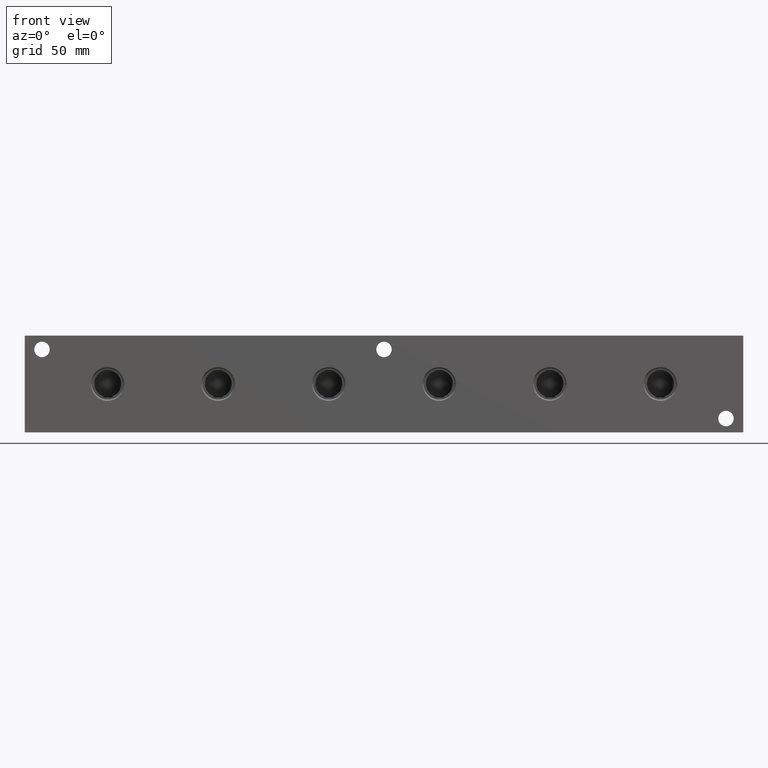
[diagram: clean part render]
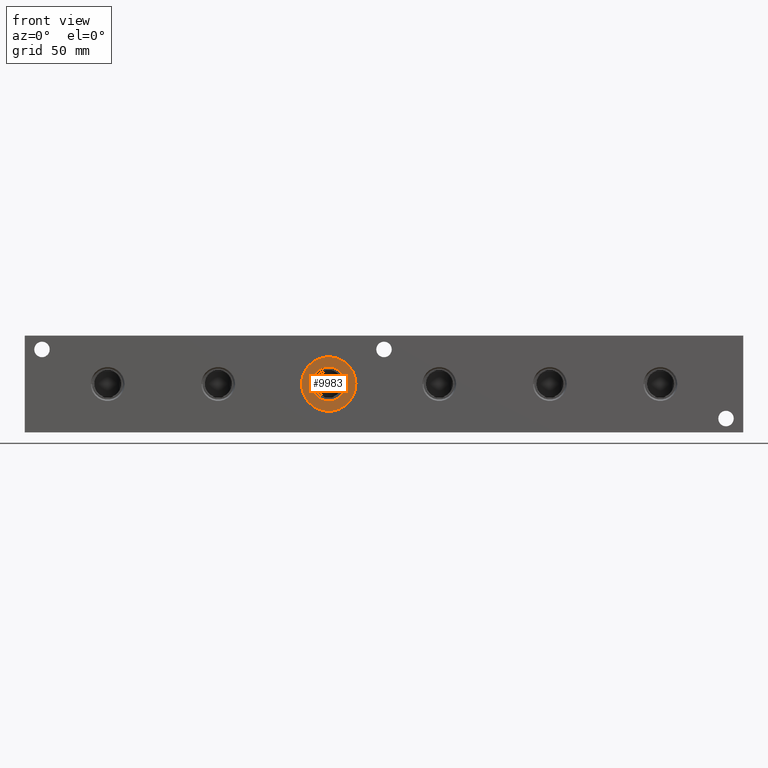
[diagram: same view with one face highlighted and labeled with its STEP entity id]
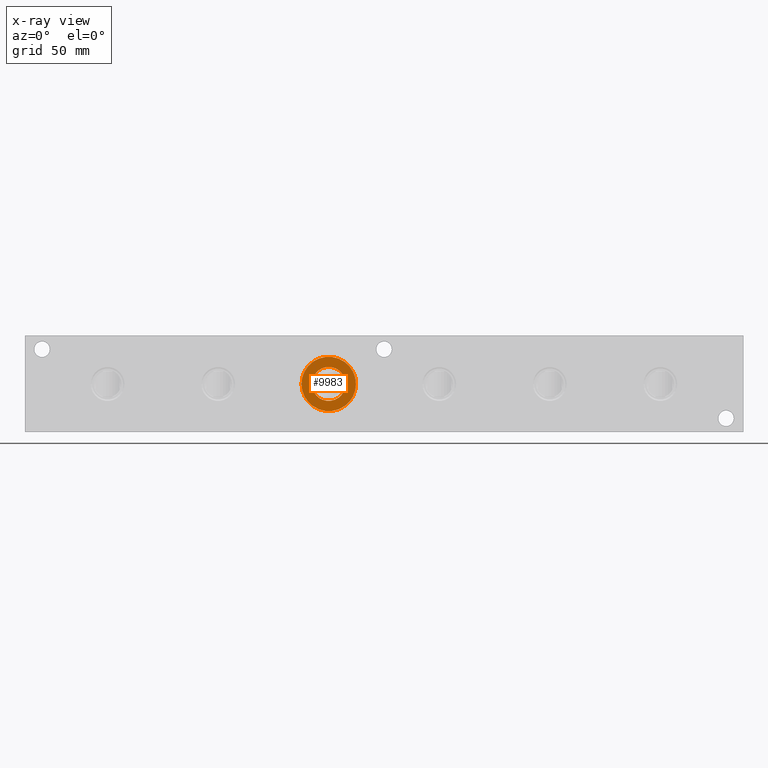
[diagram: x-ray of the same camera — body ghosted, the highlighted face saturated]
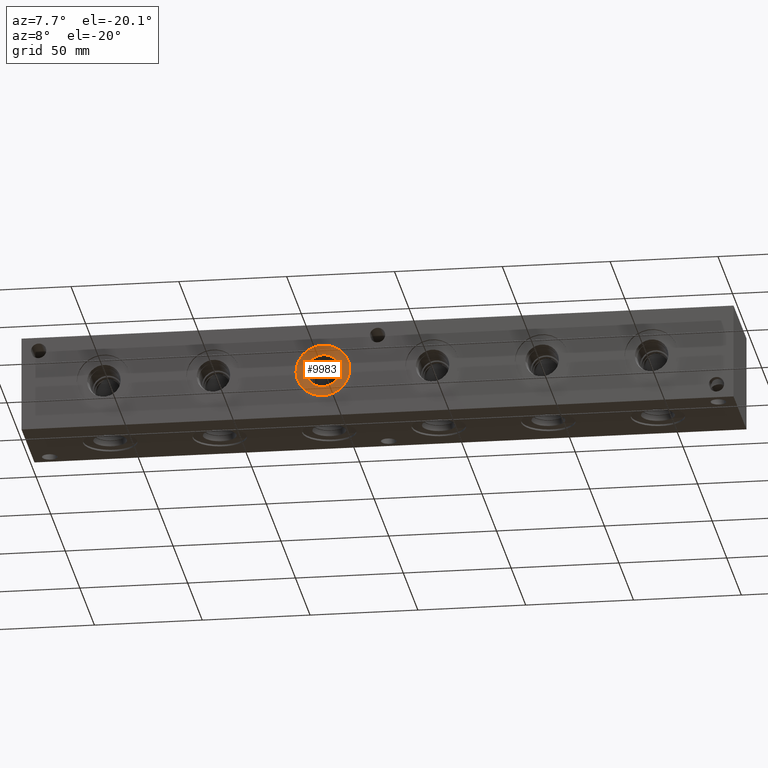
[diagram: same view with one face highlighted and labeled with its STEP entity id]
A machine part, front view. The second image highlights one B-rep face of the part: STEP entity #9983.
The next image is the same camera in x-ray: the body ghosted, the highlighted face saturated — about 0% of this face is hidden behind the body in this view.
A second angle (auxiliary view) of the same face is appended — the face is thin or edge-on in the first view.
In plain terms, the highlighted planar face has unit normal (0, 1, 0).
Its self-contained STEP definition (entity closure, byte-faithful):
#452=CIRCLE('',#10629,12.5095);
#453=CIRCLE('',#10630,12.5095);
#454=CIRCLE('',#10632,7.79780000000001);
#455=CIRCLE('',#10633,7.79780000000001);
#670=FACE_BOUND('',#2085,.T.);
#1496=FACE_OUTER_BOUND('',#2084,.T.);
#2084=EDGE_LOOP('',(#8346,#8347));
#2085=EDGE_LOOP('',(#8348,#8349));
#4541=VERTEX_POINT('',#17314);
#4542=VERTEX_POINT('',#17316);
#4543=VERTEX_POINT('',#17320);
#4544=VERTEX_POINT('',#17321);
#5862=EDGE_CURVE('',#4541,#4542,#452,.T.);
#5863=EDGE_CURVE('',#4542,#4541,#453,.T.);
#5864=EDGE_CURVE('',#4543,#4544,#454,.T.);
#5865=EDGE_CURVE('',#4544,#4543,#455,.T.);
#8346=ORIENTED_EDGE('',*,*,#5863,.F.);
#8347=ORIENTED_EDGE('',*,*,#5862,.F.);
#8348=ORIENTED_EDGE('',*,*,#5864,.T.);
#8349=ORIENTED_EDGE('',*,*,#5865,.T.);
#9249=PLANE('',#10631);
#9983=ADVANCED_FACE('',(#1496,#670),#9249,.F.);
#10629=AXIS2_PLACEMENT_3D('',#17317,#12648,#12649);
#10630=AXIS2_PLACEMENT_3D('',#17318,#12650,#12651);
#10631=AXIS2_PLACEMENT_3D('',#17319,#12652,#12653);
#10632=AXIS2_PLACEMENT_3D('',#17322,#12654,#12655);
#10633=AXIS2_PLACEMENT_3D('',#17323,#12656,#12657);
#12648=DIRECTION('center_axis',(0.,1.,0.));
#12649=DIRECTION('ref_axis',(1.,0.,0.));
#12650=DIRECTION('center_axis',(0.,1.,0.));
#12651=DIRECTION('ref_axis',(1.,0.,0.));
#12652=DIRECTION('center_axis',(0.,1.,0.));
#12653=DIRECTION('ref_axis',(0.,0.,1.));
#12654=DIRECTION('center_axis',(0.,1.,0.));
#12655=DIRECTION('ref_axis',(1.,0.,0.));
#12656=DIRECTION('center_axis',(0.,1.,0.));
#12657=DIRECTION('ref_axis',(1.,0.,0.));
#17314=CARTESIAN_POINT('',(127.1905,0.7874,22.225));
#17316=CARTESIAN_POINT('',(152.2095,0.7874,22.225));
#17317=CARTESIAN_POINT('Origin',(139.7,0.7874,22.225));
#17318=CARTESIAN_POINT('Origin',(139.7,0.7874,22.225));
#17319=CARTESIAN_POINT('Origin',(147.4978,0.7874,22.225));
#17320=CARTESIAN_POINT('',(147.4978,0.7874,22.225));
#17321=CARTESIAN_POINT('',(131.9022,0.787399999999998,22.225));
#17322=CARTESIAN_POINT('Origin',(139.7,0.7874,22.225));
#17323=CARTESIAN_POINT('Origin',(139.7,0.7874,22.225));